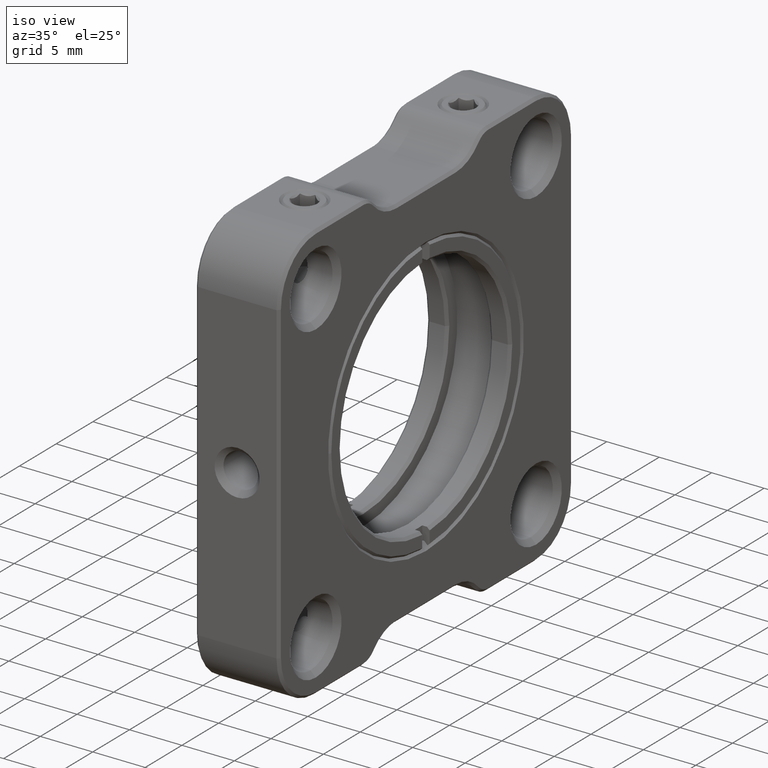
[diagram: clean part render]
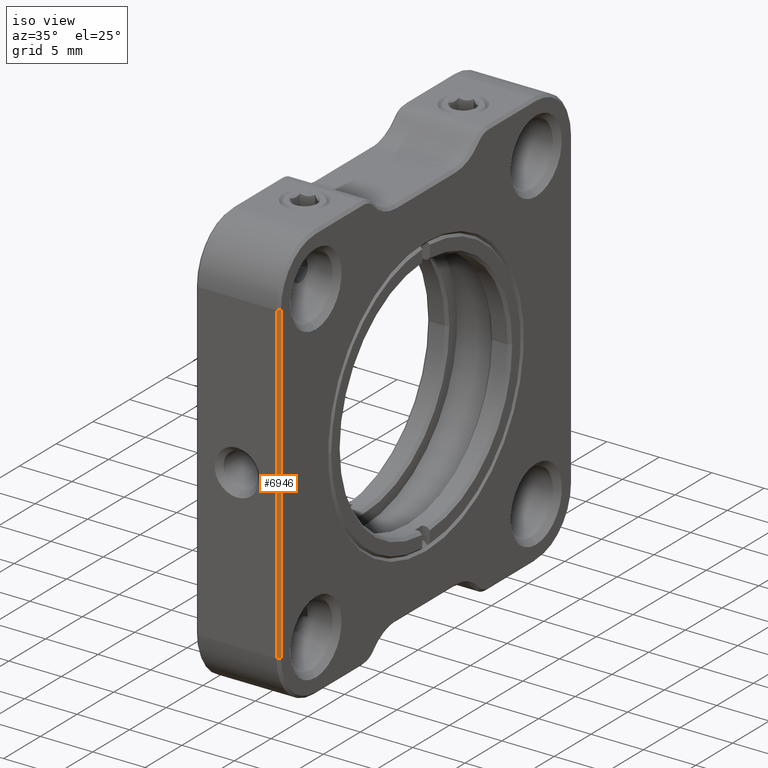
[diagram: same view with one face highlighted and labeled with its STEP entity id]
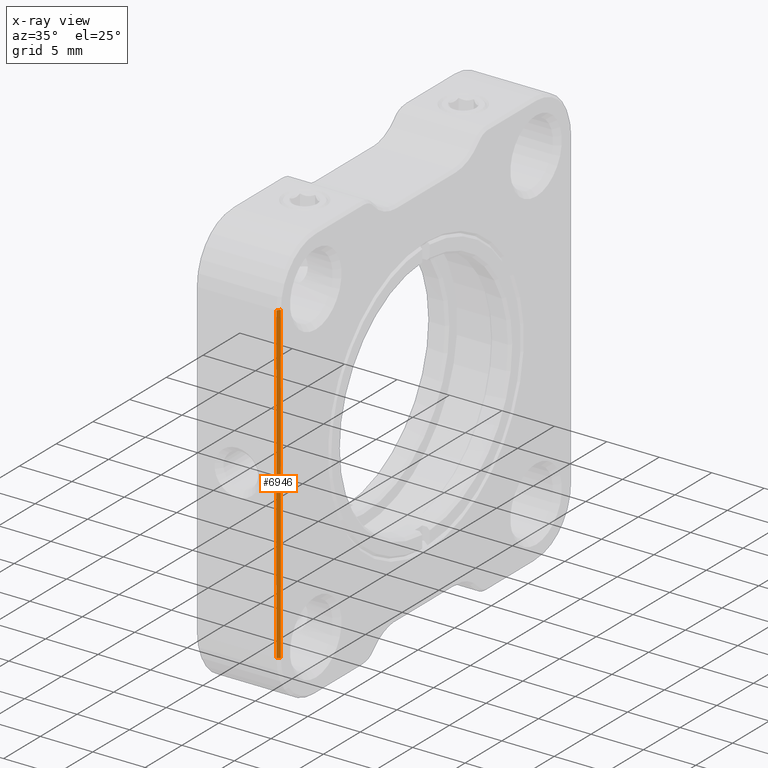
[diagram: x-ray of the same camera — body ghosted, the highlighted face saturated]
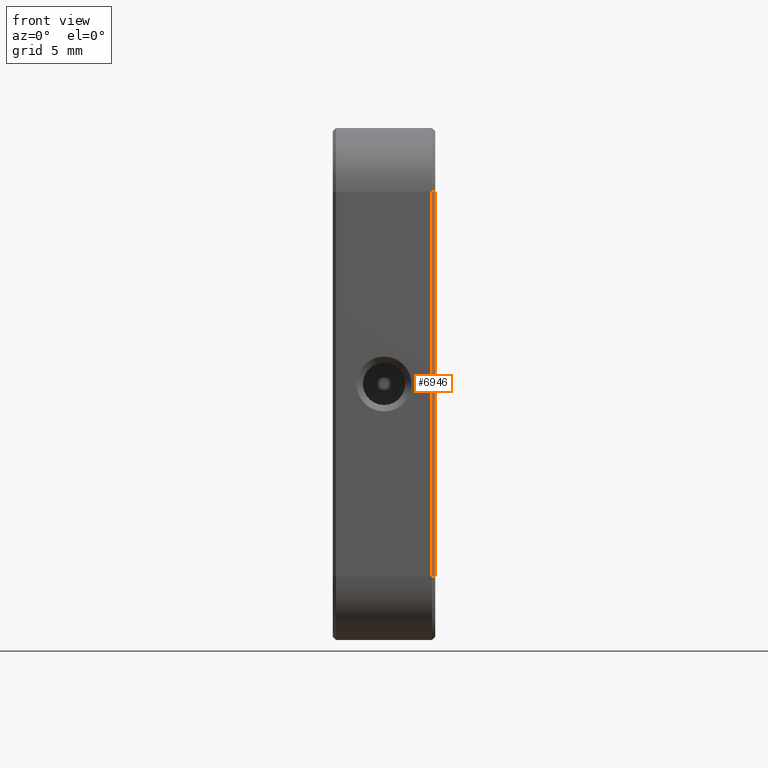
[diagram: same view with one face highlighted and labeled with its STEP entity id]
A machine part, iso view. The second image highlights one B-rep face of the part: STEP entity #6946.
The next image is the same camera in x-ray: the body ghosted, the highlighted face saturated — about 0% of this face is hidden behind the body in this view.
A second angle (front view) of the same face is appended — the face is thin or edge-on in the first view.
In plain terms, the highlighted planar face has unit normal (0.7071, -0.7071, -0).
Its self-contained STEP definition (entity closure, byte-faithful):
#92 = CARTESIAN_POINT ( 'NONE',  ( -10.70960063692994879, -17.64069877659089158, 25.00000000000000355 ) ) ;
#121 = CARTESIAN_POINT ( 'NONE',  ( -10.95960063692994879, -17.89069877659089158, 25.00000000000000355 ) ) ;
#176 = DIRECTION ( 'NONE',  ( 0.7071067811865474617, 0.7071067811865474617, 0.000000000000000000 ) ) ;
#219 = ORIENTED_EDGE ( 'NONE', *, *, #1368, .T. ) ;
#264 = ORIENTED_EDGE ( 'NONE', *, *, #3163, .F. ) ;
#365 = ORIENTED_EDGE ( 'NONE', *, *, #4139, .T. ) ;
#790 = LINE ( 'NONE', #4987, #2881 ) ;
#1121 = VERTEX_POINT ( 'NONE', #121 ) ;
#1368 = EDGE_CURVE ( 'NONE', #6690, #4867, #6113, .T. ) ;
#1826 = FACE_OUTER_BOUND ( 'NONE', #2266, .T. ) ;
#1964 = DIRECTION ( 'NONE',  ( 0.000000000000000000, 0.000000000000000000, 1.000000000000000000 ) ) ;
#2224 = CARTESIAN_POINT ( 'NONE',  ( -10.95960063692994879, -17.89069877659089158, 55.00000000000000711 ) ) ;
#2266 = EDGE_LOOP ( 'NONE', ( #219, #264, #365, #8752 ) ) ;
#2881 = VECTOR ( 'NONE', #1964, 1000.000000000000000 ) ;
#3163 = EDGE_CURVE ( 'NONE', #1121, #4867, #790, .T. ) ;
#3283 = LINE ( 'NONE', #6489, #7161 ) ;
#3410 = DIRECTION ( 'NONE',  ( 0.000000000000000000, 0.000000000000000000, -1.000000000000000000 ) ) ;
#3643 = CARTESIAN_POINT ( 'NONE',  ( -10.70960063692994879, -17.64069877659089158, 55.00000000000000711 ) ) ;
#4139 = EDGE_CURVE ( 'NONE', #1121, #9247, #3283, .T. ) ;
#4519 = DIRECTION ( 'NONE',  ( 0.7071067811865475727, -0.7071067811865475727, -0.000000000000000000 ) ) ;
#4729 = CARTESIAN_POINT ( 'NONE',  ( -10.70960063692994879, -17.64069877659089158, 55.00000000000000711 ) ) ;
#4867 = VERTEX_POINT ( 'NONE', #2224 ) ;
#4987 = CARTESIAN_POINT ( 'NONE',  ( -10.95960063692994879, -17.89069877659089158, 55.00000000000000711 ) ) ;
#5266 = DIRECTION ( 'NONE',  ( -0.7071067811865474617, -0.7071067811865474617, 0.000000000000000000 ) ) ;
#5994 = LINE ( 'NONE', #92, #7234 ) ;
#6045 = CARTESIAN_POINT ( 'NONE',  ( -10.70960063692994879, -17.64069877659089158, 40.00000000000001421 ) ) ;
#6113 = LINE ( 'NONE', #3643, #9535 ) ;
#6178 = PLANE ( 'NONE',  #8183 ) ;
#6489 = CARTESIAN_POINT ( 'NONE',  ( -10.95960063692994879, -17.89069877659089869, 25.00000000000000355 ) ) ;
#6690 = VERTEX_POINT ( 'NONE', #4729 ) ;
#6946 = ADVANCED_FACE ( 'NONE', ( #1826 ), #6178, .T. ) ;
#7112 = EDGE_CURVE ( 'NONE', #6690, #9247, #5994, .T. ) ;
#7161 = VECTOR ( 'NONE', #176, 1000.000000000000114 ) ;
#7234 = VECTOR ( 'NONE', #3410, 1000.000000000000000 ) ;
#8183 = AXIS2_PLACEMENT_3D ( 'NONE', #6045, #4519, #8558 ) ;
#8558 = DIRECTION ( 'NONE',  ( 0.000000000000000000, -0.000000000000000000, 1.000000000000000000 ) ) ;
#8752 = ORIENTED_EDGE ( 'NONE', *, *, #7112, .F. ) ;
#9023 = CARTESIAN_POINT ( 'NONE',  ( -10.70960063692994879, -17.64069877659089869, 25.00000000000000355 ) ) ;
#9247 = VERTEX_POINT ( 'NONE', #9023 ) ;
#9535 = VECTOR ( 'NONE', #5266, 1000.000000000000114 ) ;